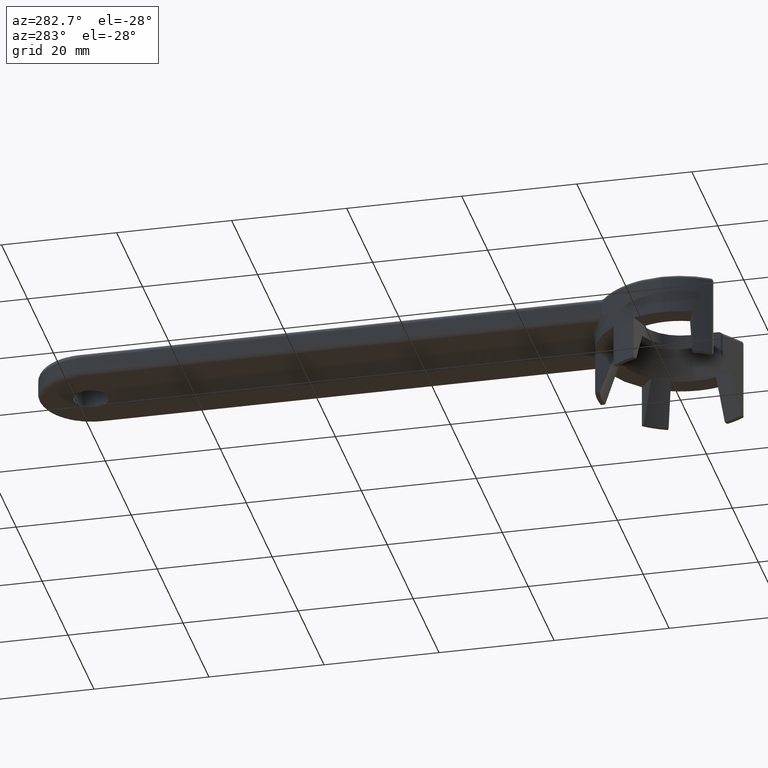
[diagram: clean part render]
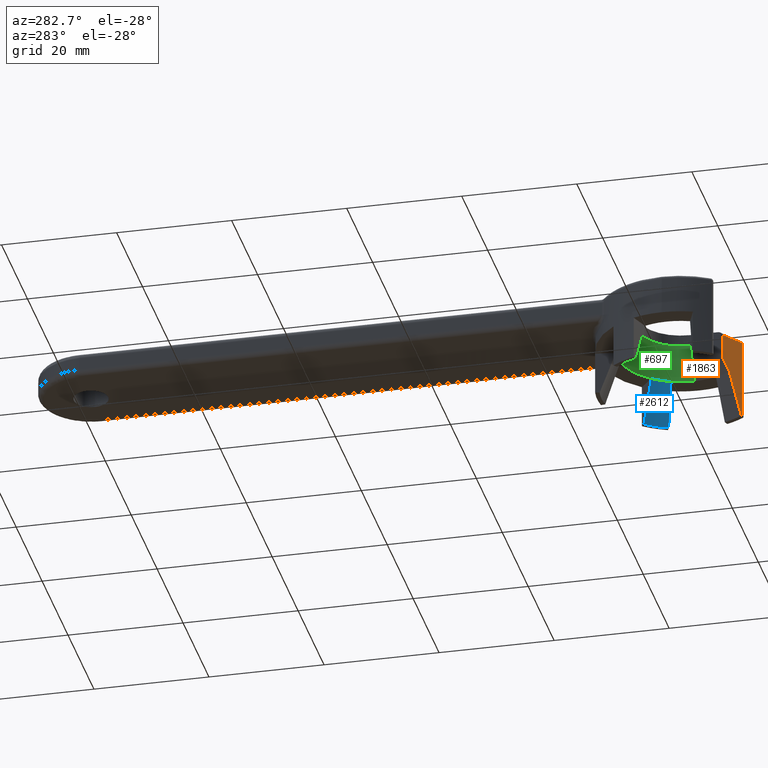
[diagram: same view with three faces highlighted in distinct colors, each labeled with its STEP entity id]
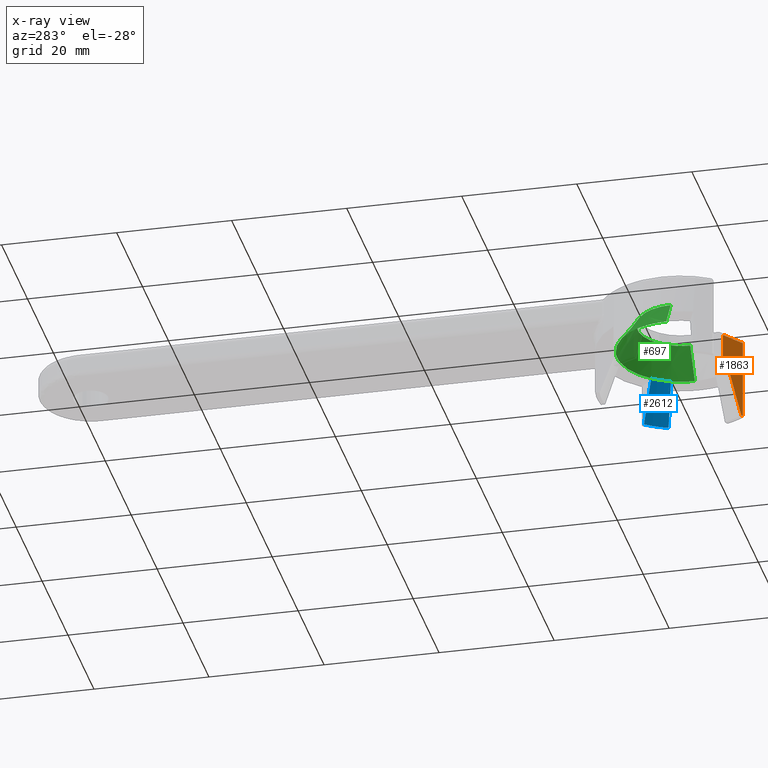
[diagram: x-ray of the same camera — body ghosted, the three highlighted faces saturated]
A machine part, auxiliary view with three faces highlighted in distinct colors.
The next image is the same camera in x-ray (body ghosted, the three faces saturated) — at least one of them is partly hidden behind the body in this view.
Their STEP definitions:

[orange] entity #1863 — the highlighted planar face has unit normal (-0.5878, -0.809, -0).
#30 = EDGE_LOOP ( 'NONE', ( #2545, #2215, #2194, #1746, #1219, #673 ) ) ;
#191 = CARTESIAN_POINT ( 'NONE',  ( 11.31901225028923700, -8.223743775210142100, -14.49999999999999800 ) ) ;
#215 = LINE ( 'NONE', #646, #610 ) ;
#289 = CARTESIAN_POINT ( 'NONE',  ( 9.512559812000001000, -6.911279253499999200, -14.50000000000000000 ) ) ;
#304 = DIRECTION ( 'NONE',  ( 0.8090169942739954300, -0.5877852524314216600, 0.0000000000000000000 ) ) ;
#319 = LINE ( 'NONE', #289, #493 ) ;
#347 = PLANE ( 'NONE',  #2543 ) ;
#459 = DIRECTION ( 'NONE',  ( -0.4640330846675470000, 0.3371397701942953600, 0.8191520443039002100 ) ) ;
#489 = DIRECTION ( 'NONE',  ( -0.0000000000000000000, -0.0000000000000000000, 1.000000000000000000 ) ) ;
#493 = VECTOR ( 'NONE', #304, 1000.000000000000000 ) ;
#592 = CARTESIAN_POINT ( 'NONE',  ( 8.900026451531728000, -6.466247714203475100, -7.000000003933755500 ) ) ;
#610 = VECTOR ( 'NONE', #459, 1000.000000000000100 ) ;
#641 = VECTOR ( 'NONE', #489, 1000.000000000000000 ) ;
#646 = CARTESIAN_POINT ( 'NONE',  ( 7.475329757555823700, -5.431144976213388100, -4.485000000000000300 ) ) ;
#673 = ORIENTED_EDGE ( 'NONE', *, *, #1907, .T. ) ;
#714 = VERTEX_POINT ( 'NONE', #1778 ) ;
#780 = VERTEX_POINT ( 'NONE', #845 ) ;
#836 = VERTEX_POINT ( 'NONE', #1392 ) ;
#837 = VECTOR ( 'NONE', #2608, 1000.000000000000100 ) ;
#845 = CARTESIAN_POINT ( 'NONE',  ( 7.706107373685369100, -5.598814732637557700, -0.5000000001281090800 ) ) ;
#929 = CARTESIAN_POINT ( 'NONE',  ( 8.900026448870676200, -6.466247715203659000, -6.999999996000001400 ) ) ;
#943 = VERTEX_POINT ( 'NONE', #1089 ) ;
#953 = DIRECTION ( 'NONE',  ( -0.5877852524314217700, -0.8090169942739953200, -0.0000000000000000000 ) ) ;
#1089 = CARTESIAN_POINT ( 'NONE',  ( 11.31901225073187300, -8.223743775192232900, -0.5000000014944903100 ) ) ;
#1135 = VERTEX_POINT ( 'NONE', #592 ) ;
#1219 = ORIENTED_EDGE ( 'NONE', *, *, #1810, .T. ) ;
#1317 = CARTESIAN_POINT ( 'NONE',  ( 7.706107373895286500, -5.598814732217641100, -2.493940233499999600 ) ) ;
#1331 = VECTOR ( 'NONE', #1547, 1000.000000000000000 ) ;
#1369 = CARTESIAN_POINT ( 'NONE',  ( 7.706107374000000100, -5.598814731999999200, -0.5000000000000000000 ) ) ;
#1392 = CARTESIAN_POINT ( 'NONE',  ( 7.706107374511817400, -5.598814731832968400, -4.892388964124189800 ) ) ;
#1452 = LINE ( 'NONE', #1317, #2232 ) ;
#1512 = LINE ( 'NONE', #1960, #1331 ) ;
#1513 = DIRECTION ( 'NONE',  ( 0.0000000000000000000, 0.0000000000000000000, -1.000000000000000000 ) ) ;
#1547 = DIRECTION ( 'NONE',  ( -0.8090169944282937800, 0.5877852522190483200, -0.0000000000000000000 ) ) ;
#1655 = EDGE_CURVE ( 'NONE', #714, #2517, #319, .T. ) ;
#1723 = LINE ( 'NONE', #2352, #641 ) ;
#1746 = ORIENTED_EDGE ( 'NONE', *, *, #1900, .T. ) ;
#1748 = EDGE_CURVE ( 'NONE', #1135, #714, #2058, .T. ) ;
#1759 = DIRECTION ( 'NONE',  ( 0.0000000000000000000, 0.0000000000000000000, -1.000000000000000000 ) ) ;
#1778 = CARTESIAN_POINT ( 'NONE',  ( 11.10846223436342400, -8.070770234312581300, -14.50000000000003400 ) ) ;
#1810 = EDGE_CURVE ( 'NONE', #943, #780, #1512, .T. ) ;
#1863 = ADVANCED_FACE ( 'NONE', ( #2372 ), #347, .T. ) ;
#1900 = EDGE_CURVE ( 'NONE', #2517, #943, #1723, .T. ) ;
#1907 = EDGE_CURVE ( 'NONE', #780, #836, #1452, .T. ) ;
#1960 = CARTESIAN_POINT ( 'NONE',  ( 9.250221097375114000, -6.720679021333190800, -0.5000000002051032700 ) ) ;
#2058 = LINE ( 'NONE', #929, #837 ) ;
#2185 = EDGE_CURVE ( 'NONE', #1135, #836, #215, .T. ) ;
#2194 = ORIENTED_EDGE ( 'NONE', *, *, #1655, .T. ) ;
#2215 = ORIENTED_EDGE ( 'NONE', *, *, #1748, .T. ) ;
#2232 = VECTOR ( 'NONE', #1513, 1000.000000000000000 ) ;
#2352 = CARTESIAN_POINT ( 'NONE',  ( 11.31901225000000200, -8.223743774999999100, -7.500000000000000900 ) ) ;
#2372 = FACE_OUTER_BOUND ( 'NONE', #30, .T. ) ;
#2517 = VERTEX_POINT ( 'NONE', #191 ) ;
#2543 = AXIS2_PLACEMENT_3D ( 'NONE', #1369, #953, #1759 ) ;
#2545 = ORIENTED_EDGE ( 'NONE', *, *, #2185, .F. ) ;
#2608 = DIRECTION ( 'NONE',  ( 0.2767001079802903200, -0.2010343960239655300, -0.9396926209452615100 ) ) ;

[blue] entity #2612 — the highlighted conical surface has half-angle 20 deg.
#32 = DIRECTION ( 'NONE',  ( 0.0000000000000000000, 3.942181466653805600E-017, -1.000000000000000000 ) ) ;
#122 = FACE_OUTER_BOUND ( 'NONE', #638, .T. ) ;
#131 = ORIENTED_EDGE ( 'NONE', *, *, #1080, .T. ) ;
#166 = CARTESIAN_POINT ( 'NONE',  ( 8.485338048920681300, 7.001561859638290000, -6.999999999999947600 ) ) ;
#238 = AXIS2_PLACEMENT_3D ( 'NONE', #601, #32, #1072 ) ;
#412 = DIRECTION ( 'NONE',  ( 0.0000000000000000000, 3.942181466653805600E-017, -1.000000000000000000 ) ) ;
#422 = CIRCLE ( 'NONE', #238, 13.73081444800002300 ) ;
#499 = DIRECTION ( 'NONE',  ( -0.3190129688376942600, -0.1233227641359645300, 0.9396926207857682100 ) ) ;
#559 = CARTESIAN_POINT ( 'NONE',  ( 10.59087383944851400, 8.738916221265157000, -14.50000000000006800 ) ) ;
#587 = VECTOR ( 'NONE', #499, 1000.000000000000000 ) ;
#601 = CARTESIAN_POINT ( 'NONE',  ( 0.0000000000000000000, 2.956636099990380800E-016, -14.50000000000006800 ) ) ;
#638 = EDGE_LOOP ( 'NONE', ( #2163, #1889, #654, #131 ) ) ;
#654 = ORIENTED_EDGE ( 'NONE', *, *, #2080, .F. ) ;
#734 = CARTESIAN_POINT ( 'NONE',  ( 0.0000000000000000000, 0.0000000000000000000, -6.999999999999895200 ) ) ;
#742 = VERTEX_POINT ( 'NONE', #2075 ) ;
#752 = EDGE_CURVE ( 'NONE', #2380, #2592, #422, .T. ) ;
#951 = DIRECTION ( 'NONE',  ( -1.000000000000000000, 0.0000000000000000000, -9.540079149302209500E-015 ) ) ;
#1012 = CARTESIAN_POINT ( 'NONE',  ( 12.80716345833718100, 4.950942289790807700, -14.50000000000006800 ) ) ;
#1072 = DIRECTION ( 'NONE',  ( 0.0000000000000000000, 1.000000000000000000, 0.0000000000000000000 ) ) ;
#1080 = EDGE_CURVE ( 'NONE', #1893, #2380, #1531, .T. ) ;
#1125 = CONICAL_SURFACE ( 'NONE', #2427, 11.00103769100000100, 0.3490658503992757300 ) ;
#1210 = AXIS2_PLACEMENT_3D ( 'NONE', #734, #2175, #951 ) ;
#1228 = DIRECTION ( 'NONE',  ( 0.0000000000000000000, 1.000000000000000000, 7.884362933307611300E-017 ) ) ;
#1429 = CIRCLE ( 'NONE', #1210, 11.00103769100000100 ) ;
#1531 = LINE ( 'NONE', #1729, #2610 ) ;
#1729 = CARTESIAN_POINT ( 'NONE',  ( 8.485338049629206100, 7.001561858779615100, -7.000000000000000000 ) ) ;
#1889 = ORIENTED_EDGE ( 'NONE', *, *, #1932, .T. ) ;
#1893 = VERTEX_POINT ( 'NONE', #166 ) ;
#1912 = CARTESIAN_POINT ( 'NONE',  ( 10.26101462905838200, 3.966662206572736600, -7.000000000000000000 ) ) ;
#1932 = EDGE_CURVE ( 'NONE', #2592, #742, #2590, .T. ) ;
#1943 = DIRECTION ( 'NONE',  ( 0.2638075259280737700, 0.2176772098876755000, -0.9396926207857682100 ) ) ;
#2075 = CARTESIAN_POINT ( 'NONE',  ( 10.26101462975510800, 3.966662204770433400, -6.999999999999947600 ) ) ;
#2080 = EDGE_CURVE ( 'NONE', #1893, #742, #1429, .T. ) ;
#2163 = ORIENTED_EDGE ( 'NONE', *, *, #752, .T. ) ;
#2175 = DIRECTION ( 'NONE',  ( 0.0000000000000000000, 0.0000000000000000000, -1.000000000000000000 ) ) ;
#2380 = VERTEX_POINT ( 'NONE', #559 ) ;
#2427 = AXIS2_PLACEMENT_3D ( 'NONE', #2489, #412, #1228 ) ;
#2489 = CARTESIAN_POINT ( 'NONE',  ( 0.0000000000000000000, 0.0000000000000000000, -7.000000000000000000 ) ) ;
#2590 = LINE ( 'NONE', #1912, #587 ) ;
#2592 = VERTEX_POINT ( 'NONE', #1012 ) ;
#2610 = VECTOR ( 'NONE', #1943, 1000.000000000000000 ) ;
#2612 = ADVANCED_FACE ( 'NONE', ( #122 ), #1125, .F. ) ;

[green] entity #697 — the highlighted conical surface has half-angle 35 deg.
#54 = CARTESIAN_POINT ( 'NONE',  ( 11.00103769099996300, -4.512698652579882400E-009, -6.999999999999947600 ) ) ;
#116 = CARTESIAN_POINT ( 'NONE',  ( 0.0000000000000000000, 0.0000000000000000000, -2.000000000000001800 ) ) ;
#166 = CARTESIAN_POINT ( 'NONE',  ( 8.485338048920681300, 7.001561859638290000, -6.999999999999947600 ) ) ;
#170 = CARTESIAN_POINT ( 'NONE',  ( 0.0000000000000000000, 0.0000000000000000000, -6.999999999999895200 ) ) ;
#172 = EDGE_CURVE ( 'NONE', #2234, #1893, #829, .T. ) ;
#182 = DIRECTION ( 'NONE',  ( 0.0000000000000000000, 0.0000000000000000000, -1.000000000000000000 ) ) ;
#239 = DIRECTION ( 'NONE',  ( -1.000000000000000000, 0.0000000000000000000, 0.0000000000000000000 ) ) ;
#317 = DIRECTION ( 'NONE',  ( 1.000000000000000000, 0.0000000000000000000, 2.312964634635743000E-016 ) ) ;
#326 = LINE ( 'NONE', #2310, #1421 ) ;
#397 = CARTESIAN_POINT ( 'NONE',  ( 0.0000000000000000000, 0.0000000000000000000, -2.000000000000000000 ) ) ;
#399 = AXIS2_PLACEMENT_3D ( 'NONE', #116, #1529, #317 ) ;
#411 = CARTESIAN_POINT ( 'NONE',  ( 0.0000000000000000000, 0.0000000000000000000, -6.999999999999895200 ) ) ;
#432 = AXIS2_PLACEMENT_3D ( 'NONE', #613, #2049, #817 ) ;
#460 = CARTESIAN_POINT ( 'NONE',  ( -1.820861410795369600, 10.84929924011126600, -6.999999999999947600 ) ) ;
#495 = VERTEX_POINT ( 'NONE', #54 ) ;
#515 = EDGE_CURVE ( 'NONE', #2511, #876, #326, .T. ) ;
#521 = ORIENTED_EDGE ( 'NONE', *, *, #172, .T. ) ;
#532 = DIRECTION ( 'NONE',  ( -0.5735764363457091000, 2.352849872202210700E-010, 0.8191520442927288100 ) ) ;
#533 = EDGE_CURVE ( 'NONE', #876, #2701, #1349, .T. ) ;
#534 = CARTESIAN_POINT ( 'NONE',  ( -11.00103769099996300, -9.878230907561412200E-010, -6.999999999999947600 ) ) ;
#535 = CARTESIAN_POINT ( 'NONE',  ( -8.565737554440684000, 6.902968233104303400, -6.999999999999947600 ) ) ;
#541 = FACE_OUTER_BOUND ( 'NONE', #2263, .T. ) ;
#595 = DIRECTION ( 'NONE',  ( 0.0000000000000000000, 0.0000000000000000000, -1.000000000000000000 ) ) ;
#602 = DIRECTION ( 'NONE',  ( -1.000000000000000000, 0.0000000000000000000, -9.540079149302209500E-015 ) ) ;
#613 = CARTESIAN_POINT ( 'NONE',  ( 0.0000000000000000000, 0.0000000000000000000, -7.000000000000000000 ) ) ;
#622 = CARTESIAN_POINT ( 'NONE',  ( -10.30619946025114300, 3.847737382452345300, -6.999999999999895200 ) ) ;
#657 = DIRECTION ( 'NONE',  ( -1.000000000000000000, 0.0000000000000000000, 0.0000000000000000000 ) ) ;
#691 = AXIS2_PLACEMENT_3D ( 'NONE', #1041, #595, #2419 ) ;
#697 = ADVANCED_FACE ( 'NONE', ( #541 ), #960, .F. ) ;
#708 = CARTESIAN_POINT ( 'NONE',  ( 0.0000000000000000000, 0.0000000000000000000, -7.000000000000000000 ) ) ;
#726 = CIRCLE ( 'NONE', #1371, 11.00103769100000100 ) ;
#734 = CARTESIAN_POINT ( 'NONE',  ( 0.0000000000000000000, 0.0000000000000000000, -6.999999999999895200 ) ) ;
#736 = ORIENTED_EDGE ( 'NONE', *, *, #2080, .T. ) ;
#742 = VERTEX_POINT ( 'NONE', #2075 ) ;
#774 = VECTOR ( 'NONE', #532, 1000.000000000000000 ) ;
#786 = CARTESIAN_POINT ( 'NONE',  ( -7.500000000000000000, 0.0000000000000000000, -1.999999999896367600 ) ) ;
#817 = DIRECTION ( 'NONE',  ( -1.000000000000000000, 0.0000000000000000000, 0.0000000000000000000 ) ) ;
#829 = CIRCLE ( 'NONE', #2031, 11.00103769100000100 ) ;
#873 = ORIENTED_EDGE ( 'NONE', *, *, #1985, .F. ) ;
#876 = VERTEX_POINT ( 'NONE', #534 ) ;
#921 = DIRECTION ( 'NONE',  ( -1.000000000000000000, 0.0000000000000000000, 0.0000000000000000000 ) ) ;
#951 = DIRECTION ( 'NONE',  ( -1.000000000000000000, 0.0000000000000000000, -9.540079149302209500E-015 ) ) ;
#956 = EDGE_CURVE ( 'NONE', #2701, #2091, #2153, .T. ) ;
#960 = CONICAL_SURFACE ( 'NONE', #2359, 7.500000000000000000, 0.6108652381915000700 ) ;
#982 = EDGE_CURVE ( 'NONE', #1335, #1434, #1119, .T. ) ;
#1041 = CARTESIAN_POINT ( 'NONE',  ( 0.0000000000000000000, 0.0000000000000000000, -6.999999999999895200 ) ) ;
#1068 = DIRECTION ( 'NONE',  ( -0.5735764363457091000, 0.0000000000000000000, -0.8191520442927288100 ) ) ;
#1119 = CIRCLE ( 'NONE', #1288, 11.00103769100000100 ) ;
#1129 = CIRCLE ( 'NONE', #399, 7.500000000000000000 ) ;
#1142 = AXIS2_PLACEMENT_3D ( 'NONE', #1808, #1611, #2237 ) ;
#1210 = AXIS2_PLACEMENT_3D ( 'NONE', #734, #2175, #951 ) ;
#1252 = EDGE_CURVE ( 'NONE', #742, #495, #726, .T. ) ;
#1280 = CARTESIAN_POINT ( 'NONE',  ( 1.695277072943487400, 10.86963044103868400, -6.999999999999947600 ) ) ;
#1288 = AXIS2_PLACEMENT_3D ( 'NONE', #170, #182, #1384 ) ;
#1335 = VERTEX_POINT ( 'NONE', #460 ) ;
#1349 = CIRCLE ( 'NONE', #691, 11.00103769099992800 ) ;
#1355 = ORIENTED_EDGE ( 'NONE', *, *, #515, .T. ) ;
#1371 = AXIS2_PLACEMENT_3D ( 'NONE', #1898, #2565, #657 ) ;
#1384 = DIRECTION ( 'NONE',  ( -1.000000000000000000, 0.0000000000000000000, -9.540079149302209500E-015 ) ) ;
#1416 = CARTESIAN_POINT ( 'NONE',  ( 0.0000000000000000000, 11.00103769100000200, -6.999999999999895200 ) ) ;
#1421 = VECTOR ( 'NONE', #1068, 1000.000000000000000 ) ;
#1429 = CIRCLE ( 'NONE', #1210, 11.00103769100000100 ) ;
#1434 = VERTEX_POINT ( 'NONE', #1416 ) ;
#1529 = DIRECTION ( 'NONE',  ( -0.0000000000000000000, -0.0000000000000000000, -1.000000000000000000 ) ) ;
#1537 = ORIENTED_EDGE ( 'NONE', *, *, #956, .T. ) ;
#1575 = EDGE_CURVE ( 'NONE', #1434, #2234, #1976, .T. ) ;
#1596 = ORIENTED_EDGE ( 'NONE', *, *, #1575, .T. ) ;
#1611 = DIRECTION ( 'NONE',  ( 0.0000000000000000000, 0.0000000000000000000, -1.000000000000000000 ) ) ;
#1749 = ORIENTED_EDGE ( 'NONE', *, *, #1252, .T. ) ;
#1808 = CARTESIAN_POINT ( 'NONE',  ( 0.0000000000000000000, 0.0000000000000000000, -6.999999999999895200 ) ) ;
#1822 = EDGE_CURVE ( 'NONE', #495, #2398, #2448, .T. ) ;
#1824 = DIRECTION ( 'NONE',  ( 0.0000000000000000000, 0.0000000000000000000, -1.000000000000000000 ) ) ;
#1853 = AXIS2_PLACEMENT_3D ( 'NONE', #411, #1824, #602 ) ;
#1893 = VERTEX_POINT ( 'NONE', #166 ) ;
#1898 = CARTESIAN_POINT ( 'NONE',  ( 0.0000000000000000000, 0.0000000000000000000, -7.000000000000000000 ) ) ;
#1976 = CIRCLE ( 'NONE', #1853, 11.00103769100000100 ) ;
#1985 = EDGE_CURVE ( 'NONE', #2511, #2398, #1129, .T. ) ;
#2026 = ORIENTED_EDGE ( 'NONE', *, *, #1822, .T. ) ;
#2031 = AXIS2_PLACEMENT_3D ( 'NONE', #708, #2148, #921 ) ;
#2049 = DIRECTION ( 'NONE',  ( 0.0000000000000000000, 0.0000000000000000000, -1.000000000000000000 ) ) ;
#2075 = CARTESIAN_POINT ( 'NONE',  ( 10.26101462975510800, 3.966662204770433400, -6.999999999999947600 ) ) ;
#2080 = EDGE_CURVE ( 'NONE', #1893, #742, #1429, .T. ) ;
#2091 = VERTEX_POINT ( 'NONE', #535 ) ;
#2093 = ORIENTED_EDGE ( 'NONE', *, *, #533, .T. ) ;
#2148 = DIRECTION ( 'NONE',  ( 0.0000000000000000000, 0.0000000000000000000, -1.000000000000000000 ) ) ;
#2153 = CIRCLE ( 'NONE', #1142, 11.00103769100000100 ) ;
#2160 = ORIENTED_EDGE ( 'NONE', *, *, #982, .T. ) ;
#2175 = DIRECTION ( 'NONE',  ( 0.0000000000000000000, 0.0000000000000000000, -1.000000000000000000 ) ) ;
#2210 = CARTESIAN_POINT ( 'NONE',  ( 7.500000000000000000, -1.538275713864983900E-009, -2.000000000000001800 ) ) ;
#2226 = CIRCLE ( 'NONE', #432, 11.00103769100000100 ) ;
#2234 = VERTEX_POINT ( 'NONE', #1280 ) ;
#2237 = DIRECTION ( 'NONE',  ( -1.000000000000000000, 0.0000000000000000000, -9.540079149302209500E-015 ) ) ;
#2263 = EDGE_LOOP ( 'NONE', ( #736, #1749, #2026, #873, #1355, #2093, #1537, #2621, #2160, #1596, #521 ) ) ;
#2310 = CARTESIAN_POINT ( 'NONE',  ( -9.250518845499998500, 0.0000000000000000000, -4.500000000000000900 ) ) ;
#2359 = AXIS2_PLACEMENT_3D ( 'NONE', #397, #2492, #239 ) ;
#2398 = VERTEX_POINT ( 'NONE', #2210 ) ;
#2405 = CARTESIAN_POINT ( 'NONE',  ( 9.250518845499998500, -3.794626261515466100E-009, -4.500000000000000900 ) ) ;
#2419 = DIRECTION ( 'NONE',  ( -1.000000000000000000, 0.0000000000000000000, 0.0000000000000000000 ) ) ;
#2448 = LINE ( 'NONE', #2405, #774 ) ;
#2492 = DIRECTION ( 'NONE',  ( 0.0000000000000000000, 0.0000000000000000000, -1.000000000000000000 ) ) ;
#2511 = VERTEX_POINT ( 'NONE', #786 ) ;
#2565 = DIRECTION ( 'NONE',  ( 0.0000000000000000000, 0.0000000000000000000, -1.000000000000000000 ) ) ;
#2621 = ORIENTED_EDGE ( 'NONE', *, *, #2642, .T. ) ;
#2642 = EDGE_CURVE ( 'NONE', #2091, #1335, #2226, .T. ) ;
#2701 = VERTEX_POINT ( 'NONE', #622 ) ;